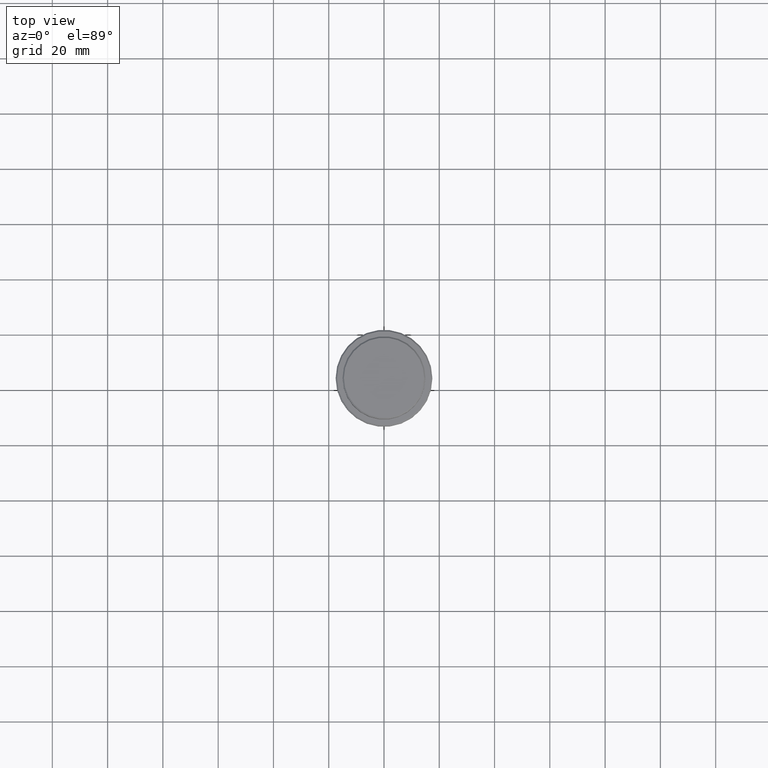
[diagram: clean part render]
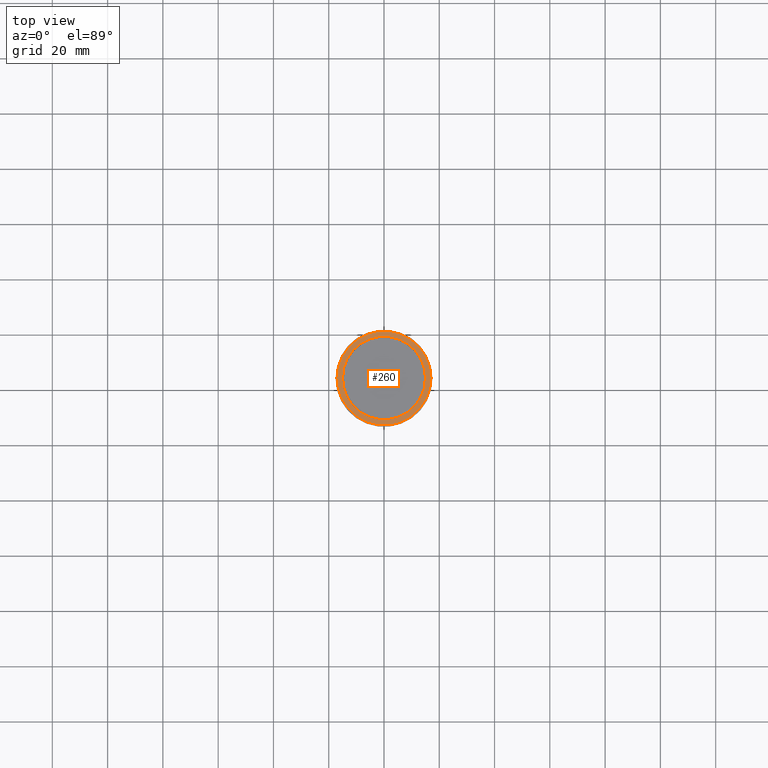
[diagram: same view with one face highlighted and labeled with its STEP entity id]
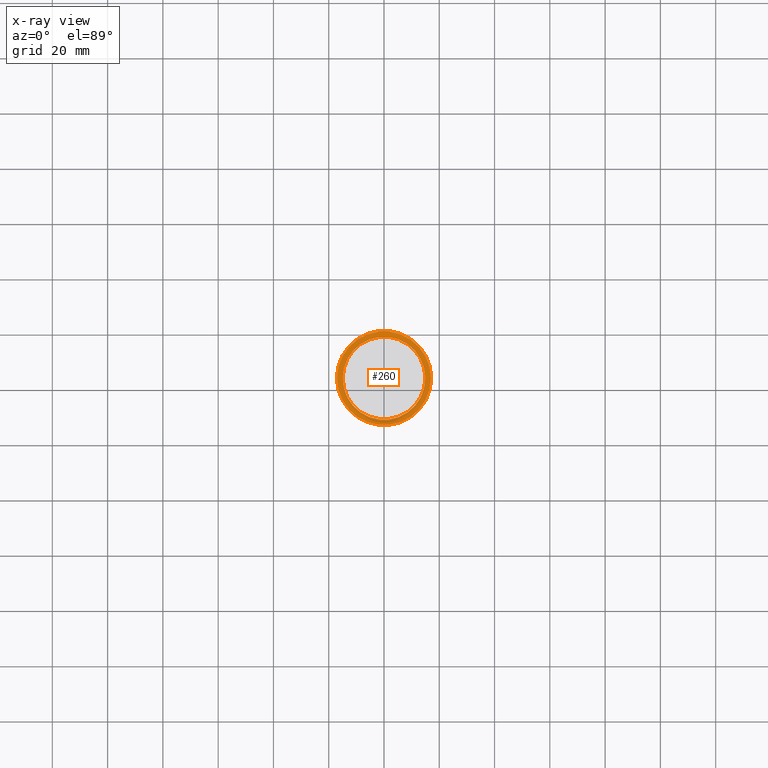
[diagram: x-ray of the same camera — body ghosted, the highlighted face saturated]
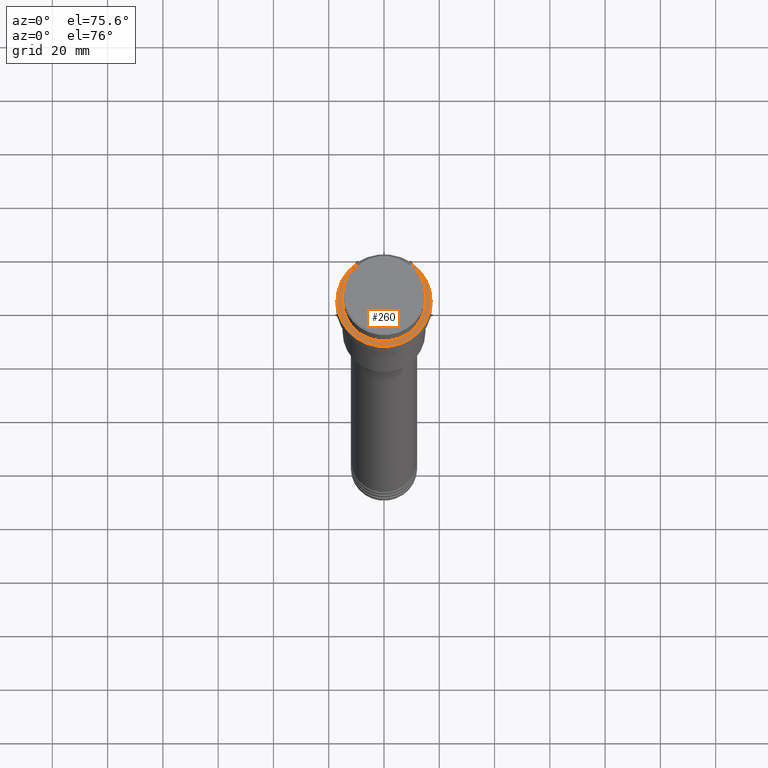
[diagram: same view with one face highlighted and labeled with its STEP entity id]
A machine part, top view. The second image highlights one B-rep face of the part: STEP entity #260.
The next image is the same camera in x-ray: the body ghosted, the highlighted face saturated — about 0% of this face is hidden behind the body in this view.
A second angle (auxiliary view) of the same face is appended — the face is thin or edge-on in the first view.
In plain terms, the highlighted planar face has unit normal (0, -0, 1).
Its self-contained STEP definition (entity closure, byte-faithful):
#12 = ORIENTED_EDGE ( 'NONE', *, *, #237, .T. ) ;
#71 = CARTESIAN_POINT ( 'NONE',  ( 0.000000000000000000, 0.000000000000000000, -9.000000000000000000 ) ) ;
#81 = EDGE_CURVE ( 'NONE', #265, #1340, #581, .T. ) ;
#99 = FACE_OUTER_BOUND ( 'NONE', #987, .T. ) ;
#179 = DIRECTION ( 'NONE',  ( 0.000000000000000000, 0.000000000000000000, -1.000000000000000000 ) ) ;
#237 = EDGE_CURVE ( 'NONE', #1212, #1322, #1087, .T. ) ;
#243 = AXIS2_PLACEMENT_3D ( 'NONE', #830, #179, #614 ) ;
#260 = ADVANCED_FACE ( 'NONE', ( #99, #975 ), #1411, .T. ) ;
#265 = VERTEX_POINT ( 'NONE', #1088 ) ;
#305 = DIRECTION ( 'NONE',  ( 1.000000000000000000, 0.000000000000000000, 0.000000000000000000 ) ) ;
#389 = DIRECTION ( 'NONE',  ( 1.000000000000000000, 0.000000000000000000, 0.000000000000000000 ) ) ;
#397 = AXIS2_PLACEMENT_3D ( 'NONE', #1303, #754, #1197 ) ;
#405 = ORIENTED_EDGE ( 'NONE', *, *, #500, .T. ) ;
#490 = CIRCLE ( 'NONE', #1295, 17.00000000000001421 ) ;
#500 = EDGE_CURVE ( 'NONE', #1340, #265, #627, .T. ) ;
#577 = EDGE_CURVE ( 'NONE', #1322, #1212, #490, .T. ) ;
#581 = CIRCLE ( 'NONE', #243, 14.99999999999999289 ) ;
#614 = DIRECTION ( 'NONE',  ( 1.000000000000000000, 0.000000000000000000, 0.000000000000000000 ) ) ;
#627 = CIRCLE ( 'NONE', #1139, 14.99999999999999289 ) ;
#754 = DIRECTION ( 'NONE',  ( 0.000000000000000000, -0.000000000000000000, 1.000000000000000000 ) ) ;
#828 = DIRECTION ( 'NONE',  ( -0.000000000000000000, -0.000000000000000000, 1.000000000000000000 ) ) ;
#830 = CARTESIAN_POINT ( 'NONE',  ( 0.000000000000000000, 0.000000000000000000, -9.000000000000000000 ) ) ;
#862 = ORIENTED_EDGE ( 'NONE', *, *, #81, .T. ) ;
#908 = CARTESIAN_POINT ( 'NONE',  ( -17.00000000000001421, 0.000000000000000000, -9.000000000000000000 ) ) ;
#940 = CARTESIAN_POINT ( 'NONE',  ( 0.000000000000000000, 0.000000000000000000, -9.000000000000000000 ) ) ;
#975 = FACE_BOUND ( 'NONE', #988, .T. ) ;
#987 = EDGE_LOOP ( 'NONE', ( #12, #1170 ) ) ;
#988 = EDGE_LOOP ( 'NONE', ( #405, #862 ) ) ;
#1028 = CARTESIAN_POINT ( 'NONE',  ( 17.00000000000001421, 2.112515728529185250E-15, -9.000000000000000000 ) ) ;
#1087 = CIRCLE ( 'NONE', #1315, 17.00000000000001421 ) ;
#1088 = CARTESIAN_POINT ( 'NONE',  ( -14.99999999999999289, 1.836970198721028800E-15, -9.000000000000000000 ) ) ;
#1139 = AXIS2_PLACEMENT_3D ( 'NONE', #71, #1379, #389 ) ;
#1170 = ORIENTED_EDGE ( 'NONE', *, *, #577, .T. ) ;
#1197 = DIRECTION ( 'NONE',  ( 1.000000000000000000, 0.000000000000000000, 0.000000000000000000 ) ) ;
#1212 = VERTEX_POINT ( 'NONE', #908 ) ;
#1268 = DIRECTION ( 'NONE',  ( 1.000000000000000000, 0.000000000000000000, 0.000000000000000000 ) ) ;
#1287 = DIRECTION ( 'NONE',  ( -0.000000000000000000, -0.000000000000000000, 1.000000000000000000 ) ) ;
#1295 = AXIS2_PLACEMENT_3D ( 'NONE', #940, #828, #1268 ) ;
#1303 = CARTESIAN_POINT ( 'NONE',  ( 0.000000000000000000, 14.49999999999999467, -9.000000000000000000 ) ) ;
#1315 = AXIS2_PLACEMENT_3D ( 'NONE', #1395, #1287, #305 ) ;
#1322 = VERTEX_POINT ( 'NONE', #1028 ) ;
#1340 = VERTEX_POINT ( 'NONE', #1385 ) ;
#1379 = DIRECTION ( 'NONE',  ( 0.000000000000000000, 0.000000000000000000, -1.000000000000000000 ) ) ;
#1385 = CARTESIAN_POINT ( 'NONE',  ( 14.99999999999999289, 0.000000000000000000, -9.000000000000000000 ) ) ;
#1395 = CARTESIAN_POINT ( 'NONE',  ( 0.000000000000000000, 0.000000000000000000, -9.000000000000000000 ) ) ;
#1411 = PLANE ( 'NONE',  #397 ) ;